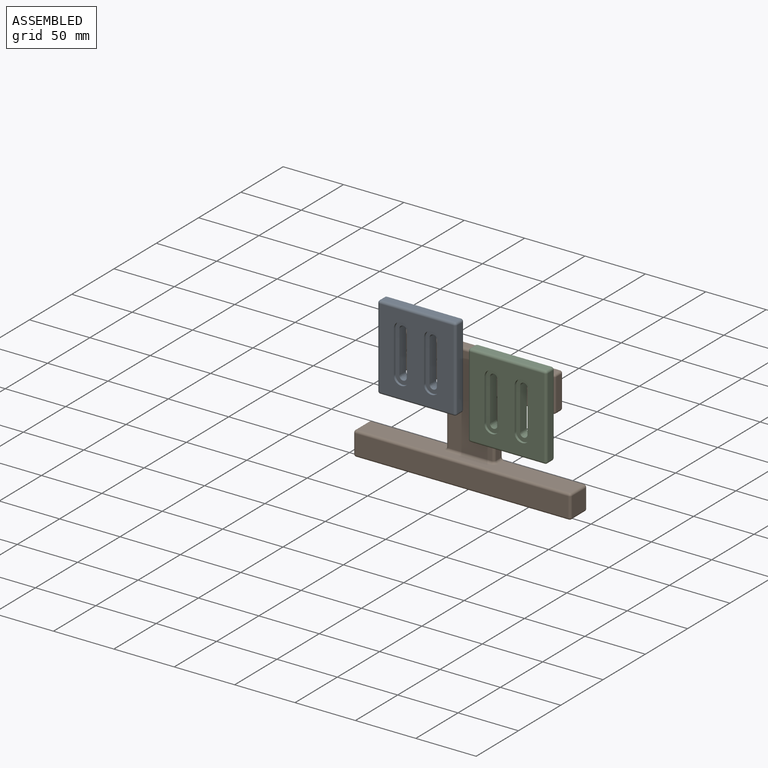
[diagram: assembled view]
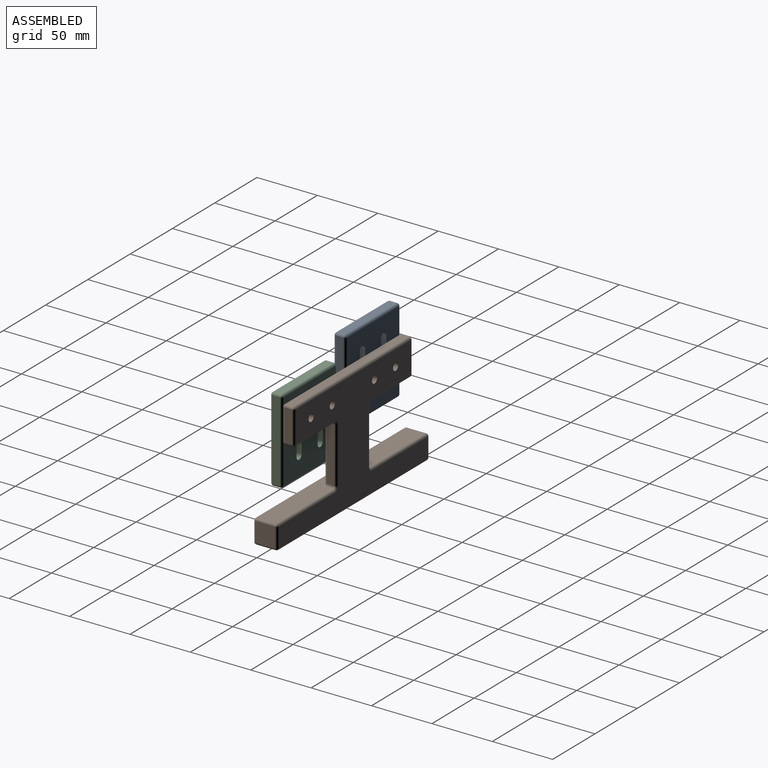
[diagram: assembled view, second angle]
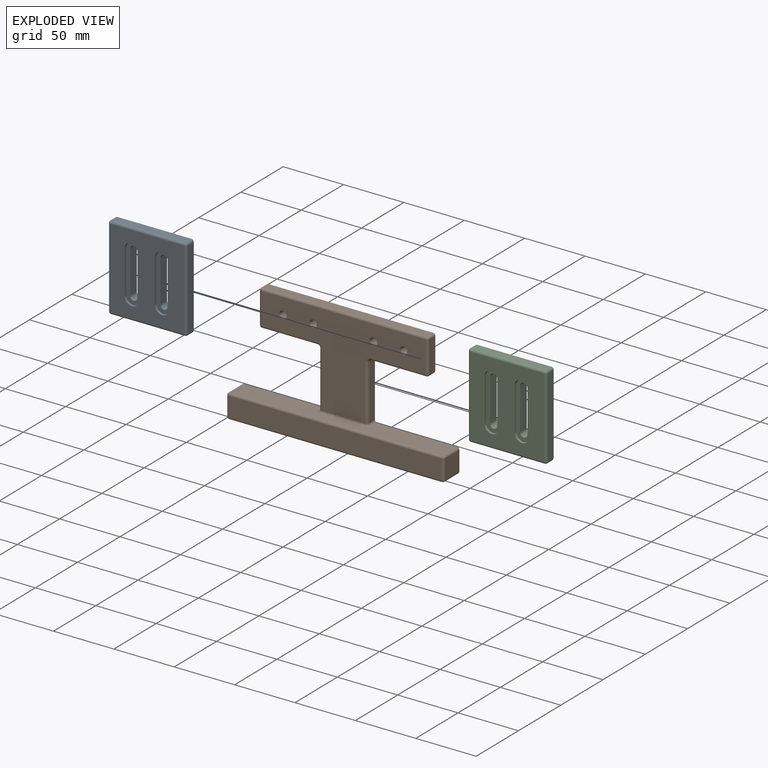
[diagram: exploded view]
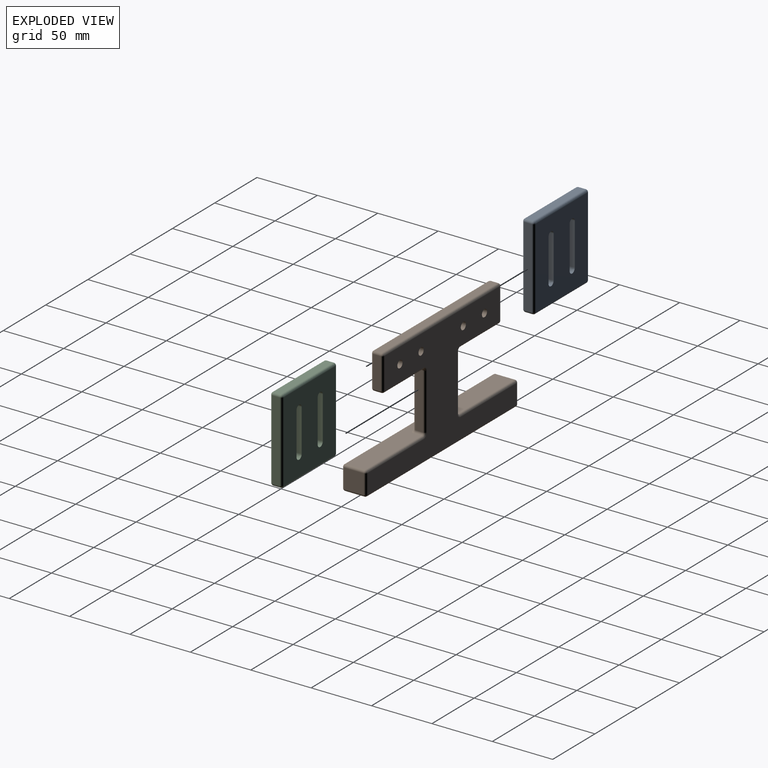
[diagram: exploded view, second angle]
ASSEMBLY  parts=3 mates=4
PART A: 44 faces, bbox 65x10x70 mm
  f0: plane 35x8mm, normal (1,0,0), area 280mm2, adj f1,f6,f13,f18
  f1: cylinder r=3.05mm len=8mm, axis (0,1,0), area 76.7mm2, adj f0,f2,f13,f18
  f2: plane 35x8mm, normal (-1,0,0), area 280mm2, adj f1,f6,f13,f18
  f3: extruded ~8x6.1mm, area 76.7mm2, adj f4,f7,f13,f23
  f4: plane 35x8mm, normal (1,0,0), area 280mm2, adj f3,f5,f13,f23
  f5: cylinder r=3.05mm len=8mm, axis (0,1,0), area 76.7mm2, adj f4,f7,f13,f23
  f6: extruded ~8x6.1mm, area 76.7mm2, adj f0,f2,f13,f18
  f7: plane 35x8mm, normal (-1,0,0), area 280mm2, adj f3,f5,f13,f23
  f8: plane 66x61mm, normal (0,-1,0), area 2905.9mm2, adj f14,f15,f16,f17,f19,f20,f21,f22
  f9: plane 61x6mm, normal (0,0,-1), area 366mm2, adj f32,f37,f40,f43
  f10: plane 66x6mm, normal (1,0,0), area 396mm2, adj f29,f38,f39,f43
  f11: plane 61x6mm, normal (0,0,1), area 366mm2, adj f24,f28,f29,f30
  f12: plane 66x6mm, normal (-1,0,0), area 396mm2, adj f24,f27,f31,f32
  f13: plane 66x61mm, normal (0,1,0), area 3540.5mm2, adj f0,f1,f2,f3,f4,f5,f6,f7
  f14: cylinder r=6.25mm len=12.5mm, axis (0,-1,0), area 39.7mm2, adj f8,f15,f17,f18
  f15: plane 34.54x2mm, normal (1,0,0), area 69.1mm2, adj f8,f14,f16,f18
  f16: cylinder r=6.25mm len=12.5mm, axis (0,-1,0), area 39.7mm2, adj f8,f15,f17,f18
  f17: plane 35x2mm, normal (-1,0,0), area 70mm2, adj f8,f14,f16,f18
  f18: plane 47.5x12.5mm, normal (0,-1,0), area 317.3mm2, adj f0,f1,f2,f6,f14,f15,f16,f17
  f19: cylinder r=6.25mm len=12.5mm, axis (0,-1,0), area 39.7mm2, adj f8,f20,f22,f23
  f20: plane 35x2mm, normal (1,0,0), area 70mm2, adj f8,f19,f21,f23
  f21: cylinder r=6.25mm len=12.5mm, axis (0,-1,0), area 39.7mm2, adj f8,f20,f22,f23
  f22: plane 34.54x2mm, normal (-1,0,0), area 69.1mm2, adj f8,f19,f21,f23
  f23: plane 47.5x12.5mm, normal (0,-1,0), area 317.3mm2, adj f3,f4,f5,f7,f19,f20,f21,f22
  f24: cylinder r=2mm len=6mm, axis (0,-1,0), area 18.8mm2, adj f11,f12,f25,f26
  f25: sphere r=2mm, area 6.3mm2, adj f24,f27,f28
  f26: sphere r=2mm, area 6.3mm2, adj f24,f30,f31
  f27: cylinder r=2mm len=66mm, axis (0,0,1), area 207.3mm2, adj f8,f12,f25,f33
  f28: cylinder r=2mm len=61mm, axis (1,0,0), area 191.6mm2, adj f8,f11,f25,f34
  f29: cylinder r=2mm len=6mm, axis (0,1,0), area 18.8mm2, adj f10,f11,f34,f35
  f30: cylinder r=2mm len=61mm, axis (-1,0,0), area 191.6mm2, adj f11,f13,f26,f35
  f31: cylinder r=2mm len=66mm, axis (0,0,-1), area 207.3mm2, adj f12,f13,f26,f36
  f32: cylinder r=2mm len=6mm, axis (0,1,0), area 18.8mm2, adj f9,f12,f33,f36
  f33: sphere r=2mm, area 6.3mm2, adj f27,f32,f37
  f34: sphere r=2mm, area 6.3mm2, adj f28,f29,f38
  f35: sphere r=2mm, area 6.3mm2, adj f29,f30,f39
  f36: sphere r=2mm, area 6.3mm2, adj f31,f32,f40
  f37: cylinder r=2mm len=61mm, axis (-1,0,0), area 191.6mm2, adj f8,f9,f33,f41
  f38: cylinder r=2mm len=66mm, axis (0,0,-1), area 207.3mm2, adj f8,f10,f34,f41
  f39: cylinder r=2mm len=66mm, axis (0,0,1), area 207.3mm2, adj f10,f13,f35,f42
  f40: cylinder r=2mm len=61mm, axis (1,0,0), area 191.6mm2, adj f9,f13,f36,f42
  f41: sphere r=2mm, area 6.3mm2, adj f37,f38,f43
  f42: sphere r=2mm, area 6.3mm2, adj f39,f40,f43
  f43: cylinder r=2mm len=6mm, axis (0,-1,0), area 18.8mm2, adj f9,f10,f41,f42
PART B: 78 faces, bbox 180x100x20 mm
  f0: plane 46x6mm, normal (0,-1,0), area 276mm2, adj f64,f65,f73,f74
  f1: plane 46x6mm, normal (-1,0,0), area 276mm2, adj f63,f72,f73,f77
  f2: plane 46x6mm, normal (1,0,0), area 276mm2, adj f47,f48,f60,f61
  f3: plane 46x6mm, normal (0,-1,0), area 276mm2, adj f28,f29,f46,f47
  f4: plane 26x6mm, normal (1,0,0), area 156mm2, adj f21,f28,f37,f38
  f5: plane 136x6mm, normal (0,1,0), area 816mm2, adj f36,f37,f53,f54
  f6: cylinder r=3.05mm len=10mm, axis (0,0,-1), area 191.6mm2, adj f11,f12
  f7: cylinder r=3.05mm len=10mm, axis (0,0,-1), area 191.6mm2, adj f11,f12
  f8: cylinder r=3.05mm len=10mm, axis (0,0,-1), area 191.6mm2, adj f11,f12
  f9: plane 26x6mm, normal (-1,0,0), area 156mm2, adj f52,f53,f65,f66
  f10: cylinder r=3.05mm len=10mm, axis (0,0,-1), area 191.6mm2, adj f11,f12
  f11: plane 136x76mm, normal (0,0,1), area 5226mm2, adj f6,f7,f8,f10,f38,f46,f54,f55
  f12: plane 176x96mm, normal (0,0,-1), area 8192.8mm2, adj f6,f7,f8,f10,f21,f29,f30,f35
  f13: plane 176x16mm, normal (0,1,0), area 2382.9mm2, adj f31,f32,f49,f50,f61,f62,f67,f71
  f14: plane 16x16mm, normal (-1,0,0), area 256mm2, adj f33,f34,f50,f51
  f15: plane 176x16mm, normal (0,-1,0), area 2816mm2, adj f20,f22,f34,f35
  f16: plane 16x16mm, normal (1,0,0), area 256mm2, adj f19,f22,f30,f31
  f17: plane 176x16mm, normal (0,0,1), area 2816mm2, adj f19,f20,f32,f33
  f18: sphere r=2mm, area 6.3mm2, adj f19,f20,f22
  f19: cylinder r=2mm len=16mm, axis (0,-1,0), area 50.3mm2, adj f16,f17,f18,f23
  f20: cylinder r=2mm len=176mm, axis (-1,0,0), area 552.9mm2, adj f15,f17,f18,f24
  f21: cylinder r=2mm len=26mm, axis (0,1,0), area 81.7mm2, adj f4,f12,f25,f27
  f22: cylinder r=2mm len=16mm, axis (0,0,1), area 50.3mm2, adj f15,f16,f18,f26
  f23: sphere r=2mm, area 6.3mm2, adj f19,f31,f32
  f24: sphere r=2mm, area 6.3mm2, adj f20,f33,f34
  f25: sphere r=2mm, area 6.3mm2, adj f21,f28,f29
  f26: sphere r=2mm, area 6.3mm2, adj f22,f30,f35
  f27: sphere r=2mm, area 6.3mm2, adj f21,f36,f37
  f28: cylinder r=2mm len=6mm, axis (0,0,1), area 18.8mm2, adj f3,f4,f25,f39
  f29: cylinder r=2mm len=46mm, axis (1,0,0), area 144.5mm2, adj f3,f12,f25,f40
  f30: cylinder r=2mm len=16mm, axis (0,1,0), area 50.3mm2, adj f12,f16,f26,f41
  f31: cylinder r=2mm len=16mm, axis (0,0,-1), area 50.3mm2, adj f13,f16,f23,f41
  f32: cylinder r=2mm len=176mm, axis (1,0,0), area 552.9mm2, adj f13,f17,f23,f42
  f33: cylinder r=2mm len=16mm, axis (0,1,0), area 50.3mm2, adj f14,f17,f24,f42
  f34: cylinder r=2mm len=16mm, axis (0,0,-1), area 50.3mm2, adj f14,f15,f24,f43
  f35: cylinder r=2mm len=176mm, axis (1,0,0), area 552.9mm2, adj f12,f15,f26,f43
  f36: cylinder r=2mm len=136mm, axis (-1,0,0), area 427.3mm2, adj f5,f12,f27,f44
  f37: cylinder r=2mm len=6mm, axis (0,0,-1), area 18.8mm2, adj f4,f5,f27,f45
  f38: cylinder r=2mm len=26mm, axis (0,-1,0), area 81.7mm2, adj f4,f11,f39,f45
  f39: sphere r=2mm, area 6.3mm2, adj f28,f38,f46
  f40: torus R=4mm, axis (0,0,1), area 13.5mm2, adj f12,f29,f47,f48
  f41: sphere r=2mm, area 6.3mm2, adj f30,f31,f49
  f42: sphere r=2mm, area 6.3mm2, adj f32,f33,f50
  f43: sphere r=2mm, area 6.3mm2, adj f34,f35,f51
  f44: sphere r=2mm, area 6.3mm2, adj f36,f52,f53
  f45: sphere r=2mm, area 6.3mm2, adj f37,f38,f54
  f46: cylinder r=2mm len=46mm, axis (-1,0,0), area 144.5mm2, adj f3,f11,f39,f55
  f47: cylinder r=2mm len=6mm, axis (0,0,-1), area 18.8mm2, adj f2,f3,f40,f55
  f48: cylinder r=2mm len=46mm, axis (0,1,0), area 144.5mm2, adj f2,f12,f40,f56
  f49: cylinder r=2mm len=66mm, axis (-1,0,0), area 207.3mm2, adj f12,f13,f41,f56
  f50: cylinder r=2mm len=16mm, axis (0,0,1), area 50.3mm2, adj f13,f14,f42,f57
  f51: cylinder r=2mm len=16mm, axis (0,-1,0), area 50.3mm2, adj f12,f14,f43,f57
  f52: cylinder r=2mm len=26mm, axis (0,-1,0), area 81.7mm2, adj f9,f12,f44,f58
  f53: cylinder r=2mm len=6mm, axis (0,0,1), area 18.8mm2, adj f5,f9,f44,f59
  f54: cylinder r=2mm len=136mm, axis (1,0,0), area 427.3mm2, adj f5,f11,f45,f59
  f55: torus R=4mm, axis (0,0,1), area 13.5mm2, adj f11,f46,f47,f60
  f56: torus R=4mm, axis (0,0,1), area 13.5mm2, adj f12,f48,f49,f61
  f57: sphere r=2mm, area 6.3mm2, adj f50,f51,f62
  f58: sphere r=2mm, area 6.3mm2, adj f52,f64,f65
  f59: sphere r=2mm, area 6.3mm2, adj f53,f54,f66
  f60: cylinder r=2mm len=46mm, axis (0,-1,0), area 144.5mm2, adj f2,f11,f55,f67
  f61: cylinder r=2mm len=6mm, axis (0,0,1), area 18.8mm2, adj f2,f13,f56,f67
  f62: cylinder r=2mm len=66mm, axis (-1,0,0), area 207.3mm2, adj f12,f13,f57,f68
  f63: cylinder r=2mm len=46mm, axis (0,-1,0), area 144.5mm2, adj f1,f12,f68,f69
  f64: cylinder r=2mm len=46mm, axis (1,0,0), area 144.5mm2, adj f0,f12,f58,f69
  f65: cylinder r=2mm len=6mm, axis (0,0,-1), area 18.8mm2, adj f0,f9,f58,f70
  f66: cylinder r=2mm len=26mm, axis (0,1,0), area 81.7mm2, adj f9,f11,f59,f70
  f67: torus R=4mm, axis (0,-1,0), area 13.5mm2, adj f13,f60,f61,f71
  f68: torus R=4mm, axis (0,0,1), area 13.5mm2, adj f12,f62,f63,f72
  f69: torus R=4mm, axis (0,0,1), area 13.5mm2, adj f12,f63,f64,f73
  f70: sphere r=2mm, area 6.3mm2, adj f65,f66,f74
  f71: cylinder r=2mm len=36mm, axis (-1,0,0), area 113.1mm2, adj f11,f13,f67,f75
  f72: cylinder r=2mm len=6mm, axis (0,0,-1), area 18.8mm2, adj f1,f13,f68,f75
  f73: cylinder r=2mm len=6mm, axis (0,0,1), area 18.8mm2, adj f0,f1,f69,f76
  f74: cylinder r=2mm len=46mm, axis (-1,0,0), area 144.5mm2, adj f0,f11,f70,f76
  f75: torus R=4mm, axis (0,-1,0), area 13.5mm2, adj f13,f71,f72,f77
  f76: torus R=4mm, axis (0,0,1), area 13.5mm2, adj f11,f73,f74,f77
  f77: cylinder r=2mm len=46mm, axis (0,1,0), area 144.5mm2, adj f1,f11,f75,f76
PART C: same geometry as A
PLACE A rot(axis=(0,-1,0),0deg) t=(-5,0,52.5)mm
PLACE B rot(axis=(1,0,0),90deg) t=(90,10,0)mm
PLACE C rot(axis=(0,1,0),0deg) t=(70,0,36.5)mm
MATE planar C.f10 <-> B.f4  axis (1,0,0) through (70,-5,71.5)mm
MATE planar C.f13 <-> B.f11  axis (0,1,0) through (28.05,0,89)mm
MATE planar A.f13 <-> B.f11  axis (0,1,0) through (-37.5,0,87.5)mm
MATE planar A.f12 <-> B.f9  axis (-1,0,0) through (-70,-5,87.5)mm
